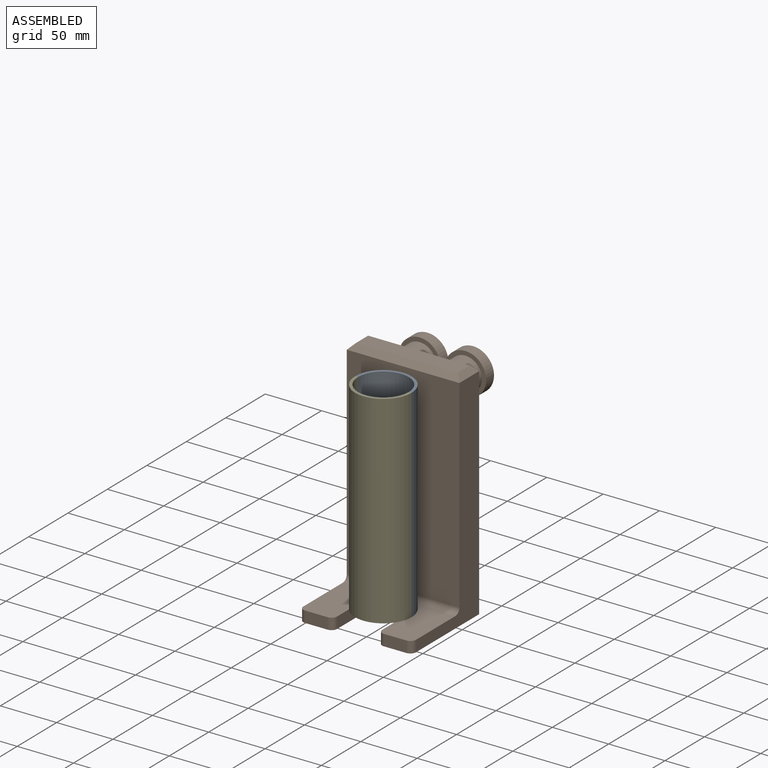
[diagram: assembled view]
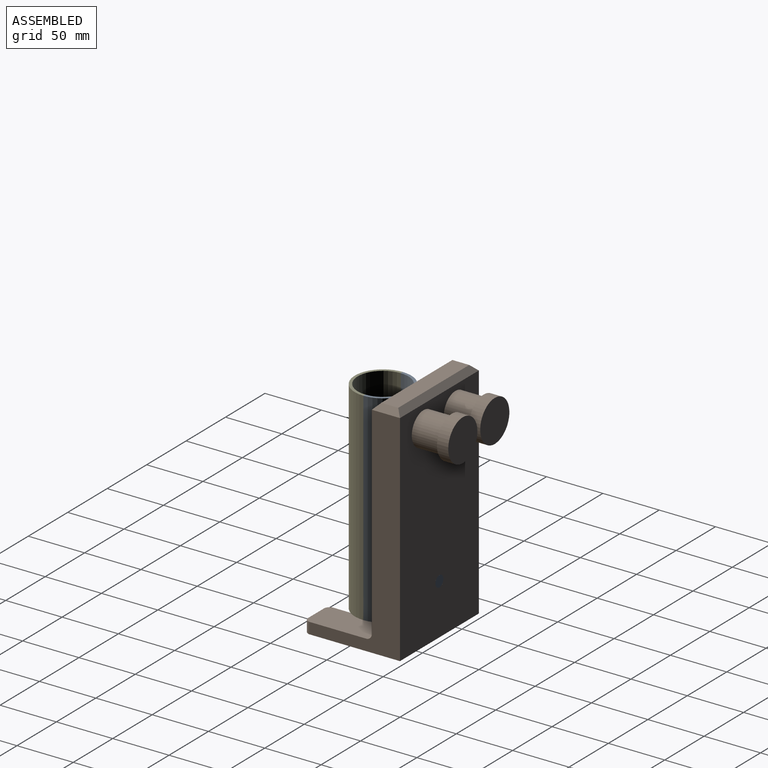
[diagram: assembled view, second angle]
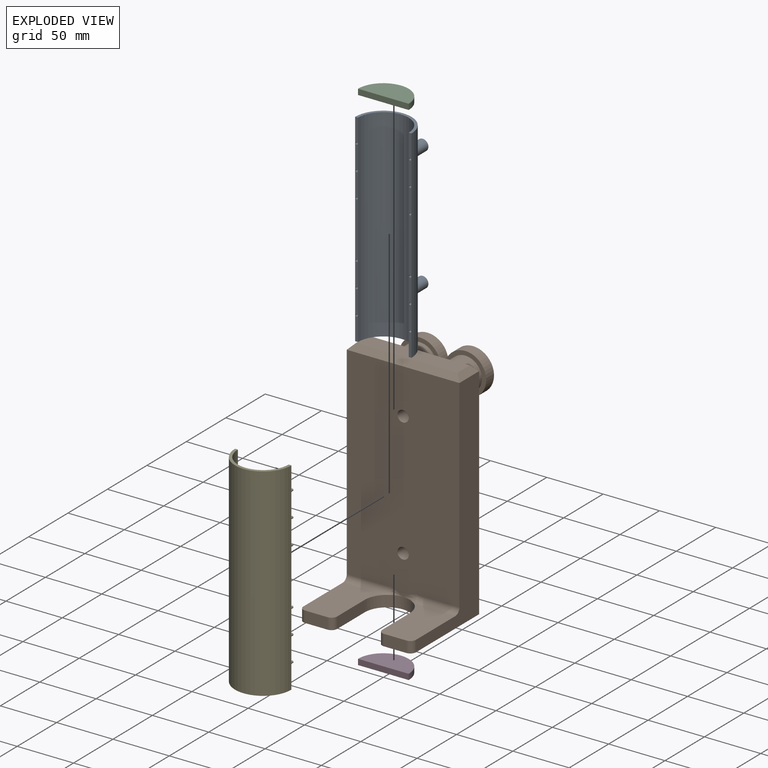
[diagram: exploded view]
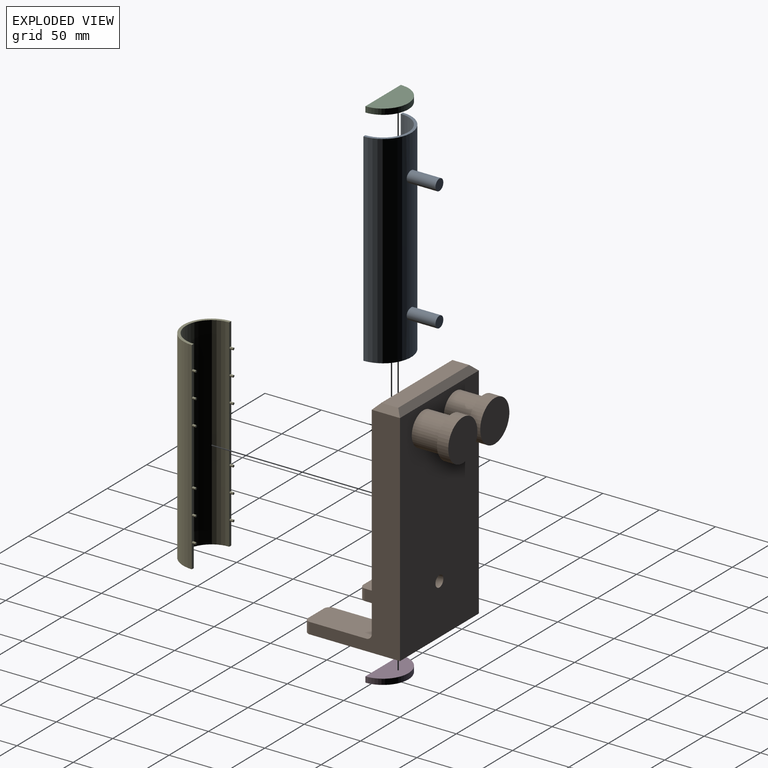
[diagram: exploded view, second angle]
ASSEMBLY  parts=5 mates=4
PART A: 34 faces, bbox 50x180x50 mm
  f0: cylinder r=25mm len=180mm, axis (0,1,0), area 13979.5mm2, adj f1,f2,f4,f5,f30,f32
  f1: plane 180x2.5mm, normal (0,0,1), area 431.2mm2, adj f0,f3,f4,f5,f18,f20,f22,f24
  f2: plane 180x2.5mm, normal (0,0,1), area 431.2mm2, adj f0,f3,f4,f5,f6,f8,f10,f12
  f3: cylinder r=22.5mm len=180mm, axis (0,1,0), area 12723.5mm2, adj f1,f2,f4,f5
  f4: plane 50x25mm, normal (0,-1,0), area 186.5mm2, adj f0,f1,f2,f3
  f5: plane 50x25mm, normal (0,1,0), area 186.5mm2, adj f0,f1,f2,f3
  f6: cylinder r=1mm len=3mm, axis (0,0,1), area 18.8mm2, adj f2,f7
  f7: plane 2x2mm, normal (0,0,1), area 3.1mm2, adj f6
  f8: cylinder r=1mm len=3mm, axis (0,0,1), area 18.8mm2, adj f2,f9
  f9: plane 2x2mm, normal (0,0,1), area 3.1mm2, adj f8
  f10: cylinder r=1mm len=3mm, axis (0,0,1), area 18.8mm2, adj f2,f11
  f11: plane 2x2mm, normal (0,0,1), area 3.1mm2, adj f10
  f12: cylinder r=1mm len=3mm, axis (0,0,1), area 18.8mm2, adj f2,f13
  f13: plane 2x2mm, normal (0,0,1), area 3.1mm2, adj f12
  f14: cylinder r=1mm len=3mm, axis (0,0,1), area 18.8mm2, adj f2,f15
  f15: plane 2x2mm, normal (0,0,1), area 3.1mm2, adj f14
  f16: cylinder r=1mm len=3mm, axis (0,0,1), area 18.8mm2, adj f2,f17
  f17: plane 2x2mm, normal (0,0,1), area 3.1mm2, adj f16
  f18: cylinder r=1mm len=3mm, axis (0,0,1), area 18.8mm2, adj f1,f19
  f19: plane 2x2mm, normal (0,0,1), area 3.1mm2, adj f18
  f20: cylinder r=1mm len=3mm, axis (0,0,1), area 18.8mm2, adj f1,f21
  f21: plane 2x2mm, normal (0,0,1), area 3.1mm2, adj f20
  f22: cylinder r=1mm len=3mm, axis (0,0,1), area 18.8mm2, adj f1,f23
  f23: plane 2x2mm, normal (0,0,1), area 3.1mm2, adj f22
  f24: cylinder r=1mm len=3mm, axis (0,0,1), area 18.8mm2, adj f1,f25
  f25: plane 2x2mm, normal (0,0,1), area 3.1mm2, adj f24
  f26: cylinder r=1mm len=3mm, axis (0,0,1), area 18.8mm2, adj f1,f27
  f27: plane 2x2mm, normal (0,0,1), area 3.1mm2, adj f26
  f28: cylinder r=1mm len=3mm, axis (0,0,1), area 18.8mm2, adj f1,f29
  f29: plane 2x2mm, normal (0,0,1), area 3.1mm2, adj f28
  f30: cylinder r=5mm len=25.51mm, axis (0,0,-1), area 793.3mm2, adj f0,f31
  f31: plane 10x10mm, normal (0,0,-1), area 78.5mm2, adj f30
  f32: cylinder r=5mm len=25.51mm, axis (0,0,-1), area 793.3mm2, adj f0,f33
  f33: plane 10x10mm, normal (0,0,-1), area 78.5mm2, adj f32
PART B: 35 faces, bbox 100x120x200 mm
  f0: plane 185x100mm, normal (0,-1,0), area 17892.1mm2, adj f2,f4,f5,f6,f25,f26,f29,f30
  f1: plane 90x15mm, normal (0,0,1), area 1350mm2, adj f31,f32,f33,f34
  f2: plane 195x80mm, normal (-1,0,0), area 5430.4mm2, adj f0,f3,f7,f19,f24,f26,f32
  f3: plane 100x85mm, normal (0,0,-1), area 6250.2mm2, adj f2,f6,f7,f16,f17,f18,f20,f21
  f4: cylinder r=5mm len=25mm, axis (0,1,0), area 785.4mm2, adj f0,f7
  f5: cylinder r=5mm len=25mm, axis (0,1,0), area 785.4mm2, adj f0,f7
  f6: plane 195x80mm, normal (1,0,0), area 5430.4mm2, adj f0,f3,f7,f22,f27,f29,f33
  f7: plane 195x100mm, normal (0,1,0), area 17978.1mm2, adj f2,f3,f4,f5,f6,f8,f9,f31
  f8: cylinder r=14.74mm len=29.48mm, axis (0,-1,0), area 2315.1mm2, adj f7,f12
  f9: cylinder r=14.74mm len=29.48mm, axis (0,-1,0), area 2315.1mm2, adj f7,f15
  f10: cylinder r=18.48mm len=36.96mm, axis (0,-1,0), area 1161.1mm2, adj f11,f12
  f11: plane 36.96x36.96mm, normal (0,1,0), area 1072.9mm2, adj f10
  f12: plane 36.96x36.96mm, normal (0,-1,0), area 390.5mm2, adj f8,f10
  f13: cylinder r=18.48mm len=36.96mm, axis (0,-1,0), area 1161.1mm2, adj f14,f15
  f14: plane 36.96x36.96mm, normal (0,1,0), area 1072.9mm2, adj f13
  f15: plane 36.96x36.96mm, normal (0,-1,0), area 390.5mm2, adj f9,f13
  f16: cylinder r=20mm len=40mm, axis (0,0,-1), area 628.3mm2, adj f3,f17,f19,f21,f22,f25,f30
  f17: plane 35x10mm, normal (1,0,0), area 350mm2, adj f3,f16,f19,f23
  f18: plane 20x10mm, normal (0,-1,0), area 200mm2, adj f3,f19,f23,f24
  f19: plane 55x36.77mm, normal (0,0,1), area 1670.4mm2, adj f2,f16,f17,f18,f23,f24,f26
  f20: plane 20x10mm, normal (0,-1,0), area 200mm2, adj f3,f22,f27,f28
  f21: plane 35x10mm, normal (-1,0,0), area 350mm2, adj f3,f16,f22,f28
  f22: plane 55x36.77mm, normal (0,0,1), area 1670.4mm2, adj f6,f16,f20,f21,f27,f28,f29
  f23: cylinder r=5mm len=10mm, axis (0,0,-1), area 78.5mm2, adj f3,f17,f18,f19
  f24: cylinder r=5mm len=10mm, axis (0,0,-1), area 78.5mm2, adj f2,f3,f18,f19
  f25: bspline ~13.93x5.37mm, area 50mm2, adj f0,f16,f26
  f26: cylinder r=5mm len=36.77mm, axis (1,0,0), area 288.8mm2, adj f0,f2,f19,f25
  f27: cylinder r=5mm len=10mm, axis (0,0,1), area 78.5mm2, adj f3,f6,f20,f22
  f28: cylinder r=5mm len=10mm, axis (0,0,1), area 78.5mm2, adj f3,f20,f21,f22
  f29: cylinder r=5mm len=36.77mm, axis (1,0,0), area 288.8mm2, adj f0,f6,f22,f30
  f30: bspline ~13.93x5.37mm, area 50mm2, adj f0,f16,f29
  f31: plane 100x5mm, normal (0,0.71,0.71), area 671.8mm2, adj f1,f7,f32,f33
  f32: plane 25x5mm, normal (-0.71,0,0.71), area 141.4mm2, adj f1,f2,f31,f34
  f33: plane 25x5mm, normal (0.71,0,0.71), area 141.4mm2, adj f1,f6,f31,f34
  f34: plane 100x5mm, normal (0,-0.71,0.71), area 671.8mm2, adj f0,f1,f32,f33
PART C: 4 faces, bbox 5x45x22.5 mm
  f0: plane 45x5mm, normal (0,0,1), area 225mm2, adj f1,f2,f3
  f1: cylinder r=22.5mm len=45mm, axis (-1,0,0), area 353.4mm2, adj f0,f2,f3
  f2: plane 45x22.5mm, normal (1,0,0), area 795.2mm2, adj f0,f1
  f3: plane 45x22.5mm, normal (-1,0,0), area 795.2mm2, adj f0,f1
PART D: same geometry as C
PART E: 30 faces, bbox 50x180x28 mm
  f0: plane 180x2.5mm, normal (0,0,1), area 431.3mm2, adj f1,f3,f4,f5,f12,f14,f16,f18
  f1: cylinder r=25mm len=180mm, axis (0,1,0), area 14137.2mm2, adj f0,f2,f4,f5
  f2: plane 180x2.5mm, normal (0,0,1), area 431.3mm2, adj f1,f3,f4,f5,f6,f8,f10,f24
  f3: cylinder r=22.5mm len=180mm, axis (0,1,0), area 12723.5mm2, adj f0,f2,f4,f5
  f4: plane 50x25mm, normal (0,-1,0), area 186.5mm2, adj f0,f1,f2,f3
  f5: plane 50x25mm, normal (0,1,0), area 186.5mm2, adj f0,f1,f2,f3
  f6: cylinder r=0.99mm len=3mm, axis (0,0,-1), area 18.8mm2, adj f2,f7
  f7: plane 1.99x1.99mm, normal (0,0,1), area 3.1mm2, adj f6
  f8: cylinder r=0.99mm len=3mm, axis (0,0,-1), area 18.8mm2, adj f2,f9
  f9: plane 1.99x1.99mm, normal (0,0,1), area 3.1mm2, adj f8
  f10: cylinder r=0.99mm len=3mm, axis (0,0,-1), area 18.8mm2, adj f2,f11
  f11: plane 1.99x1.99mm, normal (0,0,1), area 3.1mm2, adj f10
  f12: cylinder r=0.99mm len=3mm, axis (0,0,-1), area 18.8mm2, adj f0,f13
  f13: plane 1.99x1.99mm, normal (0,0,1), area 3.1mm2, adj f12
  f14: cylinder r=0.99mm len=3mm, axis (0,0,-1), area 18.8mm2, adj f0,f15
  f15: plane 1.99x1.99mm, normal (0,0,1), area 3.1mm2, adj f14
  f16: cylinder r=0.99mm len=3mm, axis (0,0,-1), area 18.8mm2, adj f0,f17
  f17: plane 1.99x1.99mm, normal (0,0,1), area 3.1mm2, adj f16
  f18: cylinder r=0.99mm len=3mm, axis (0,0,-1), area 18.8mm2, adj f0,f19
  f19: plane 1.99x1.99mm, normal (0,0,1), area 3.1mm2, adj f18
  f20: cylinder r=0.99mm len=3mm, axis (0,0,-1), area 18.8mm2, adj f0,f21
  f21: plane 1.99x1.99mm, normal (0,0,1), area 3.1mm2, adj f20
  f22: cylinder r=0.99mm len=3mm, axis (0,0,-1), area 18.8mm2, adj f0,f23
  f23: plane 1.99x1.99mm, normal (0,0,1), area 3.1mm2, adj f22
  f24: cylinder r=0.99mm len=3mm, axis (0,0,-1), area 18.8mm2, adj f2,f25
  f25: plane 1.99x1.99mm, normal (0,0,1), area 3.1mm2, adj f24
  f26: cylinder r=0.99mm len=3mm, axis (0,0,-1), area 18.8mm2, adj f2,f27
  f27: plane 1.99x1.99mm, normal (0,0,1), area 3.1mm2, adj f26
  f28: cylinder r=0.99mm len=3mm, axis (0,0,-1), area 18.8mm2, adj f2,f29
  f29: plane 1.99x1.99mm, normal (0,0,1), area 3.1mm2, adj f28
PLACE A rot(axis=(1,0,0),90deg) t=(50,-50,100)mm
PLACE B rot(axis=(0,0.02,1),0deg) t=(50,0,100)mm fixed
PLACE C rot(axis=(0.58,-0.58,0.58),120deg) t=(50,-50,162.5)mm
PLACE D rot(axis=(0.58,-0.58,0.58),120deg) t=(50,-50,30)mm
PLACE E rot(axis=(-1,0,0),90deg) t=(49.99,-75,99.99)mm
MATE fastened A.f32 <-> B.f4  axis (0,1,0) through (50,0,155)mm
MATE fastened D.f1 <-> A.f3  axis (0,0,1) through (50,-50,35)mm
MATE fastened A.f3 <-> C.f1  axis (0,0,1) through (50,-50,190)mm
MATE fastened E.f12 <-> A.f18  axis (0,-1,0) through (26.25,-50,169)mm
